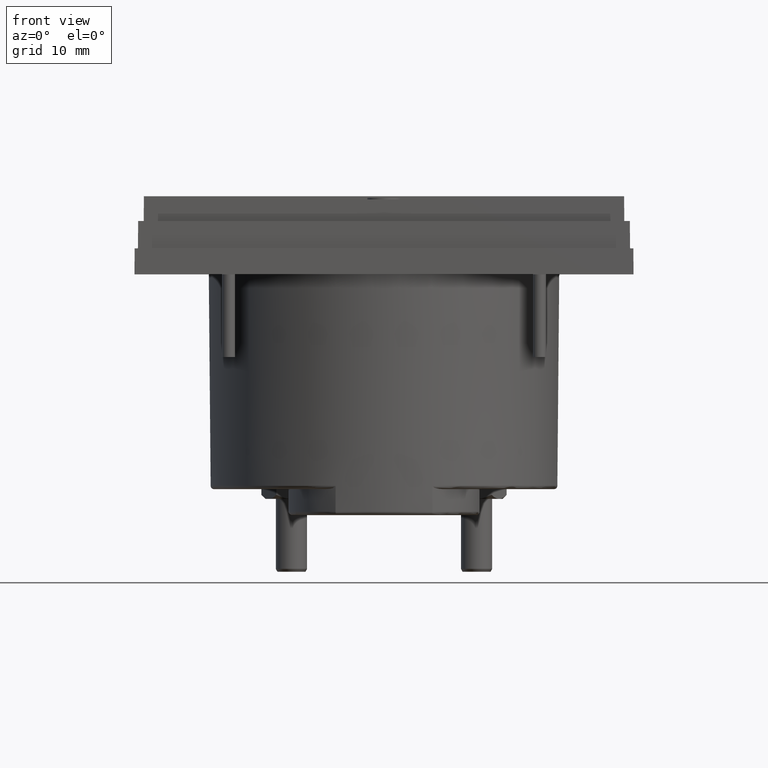
[diagram: clean part render]
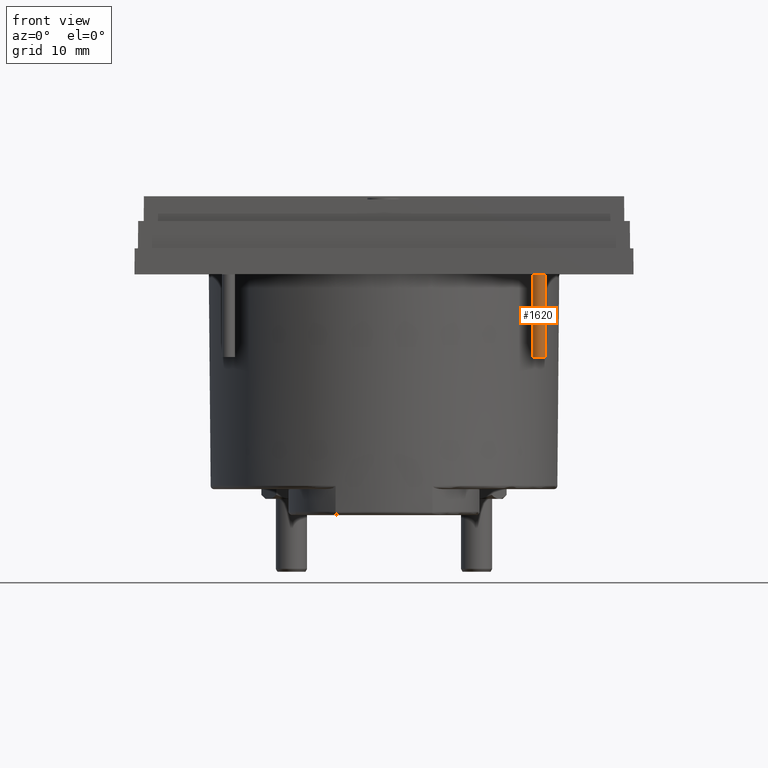
[diagram: same view with one face highlighted and labeled with its STEP entity id]
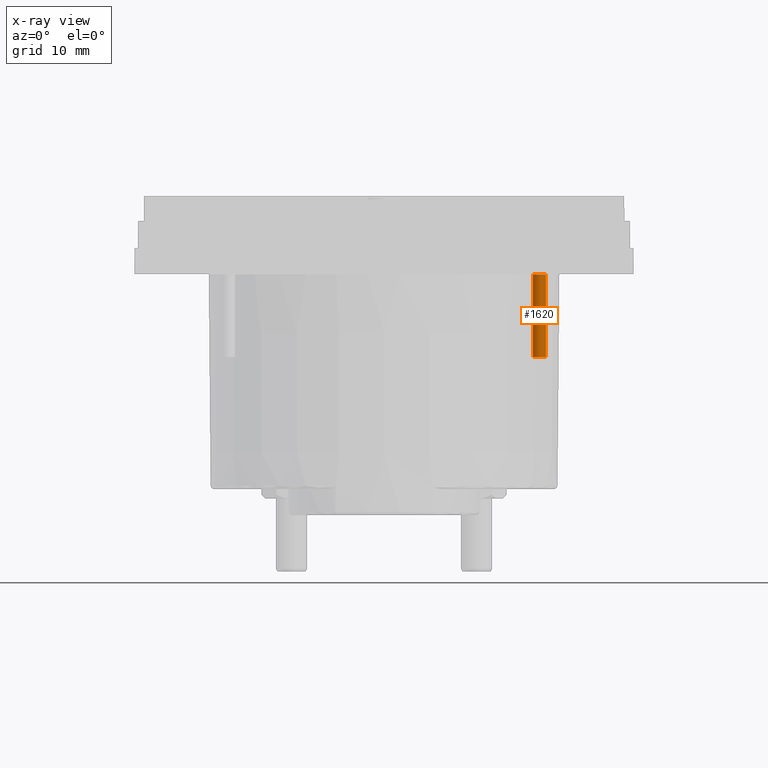
[diagram: x-ray of the same camera — body ghosted, the highlighted face saturated]
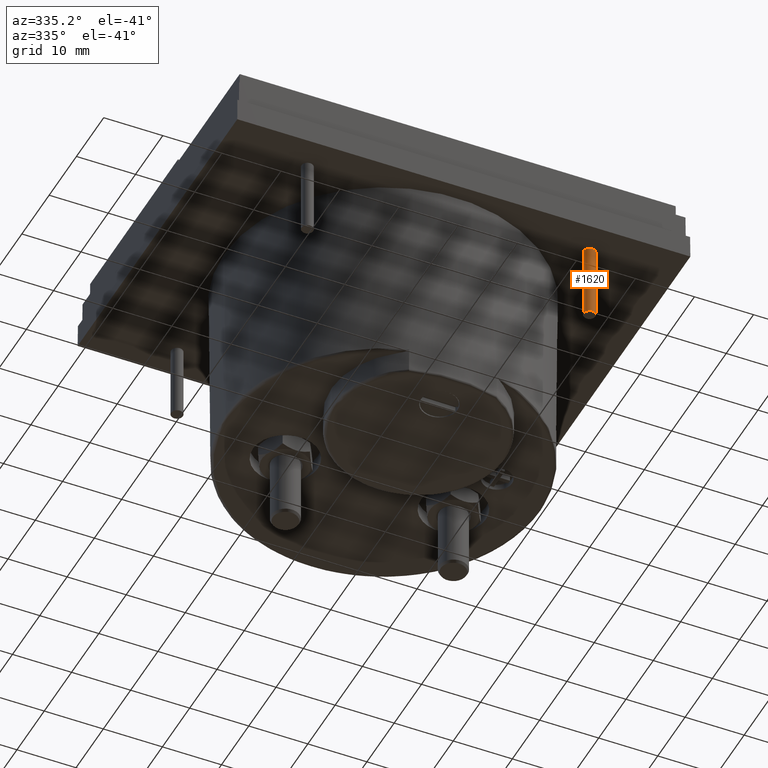
[diagram: same view with one face highlighted and labeled with its STEP entity id]
A machine part, front view. The second image highlights one B-rep face of the part: STEP entity #1620.
The next image is the same camera in x-ray: the body ghosted, the highlighted face saturated — about 0% of this face is hidden behind the body in this view.
A second angle (auxiliary view) of the same face is appended — the face is thin or edge-on in the first view.
In plain terms, the highlighted cylindrical surface (edge-blend (fillet) strip) has radius 1 mm, axis along (0, 0, -1).
Its self-contained STEP definition (entity closure, byte-faithful):
#41 = EDGE_LOOP ( 'NONE', ( #3736, #2776, #388, #5015 ) ) ;
#58 = EDGE_CURVE ( 'NONE', #5956, #4444, #1550, .T. ) ;
#388 = ORIENTED_EDGE ( 'NONE', *, *, #1729, .T. ) ;
#410 = VECTOR ( 'NONE', #1579, 39.37007874015748143 ) ;
#532 = CIRCLE ( 'NONE', #1509, 0.03937007874015751446 ) ;
#673 = CARTESIAN_POINT ( 'NONE',  ( 0.9400000000000000577, -0.1240944881889740337, -0.2732283464566929720 ) ) ;
#1256 = DIRECTION ( 'NONE',  ( 0.000000000000000000, 0.000000000000000000, -1.000000000000000000 ) ) ;
#1509 = AXIS2_PLACEMENT_3D ( 'NONE', #673, #2551, #3877 ) ;
#1540 = CARTESIAN_POINT ( 'NONE',  ( 0.9793700787401575791, -0.1240944881889740337, -0.7732283464566930276 ) ) ;
#1550 = CIRCLE ( 'NONE', #4062, 0.03937007874015751446 ) ;
#1579 = DIRECTION ( 'NONE',  ( 0.000000000000000000, 0.000000000000000000, -1.000000000000000000 ) ) ;
#1620 = ADVANCED_FACE ( 'NONE', ( #2670 ), #5791, .T. ) ;
#1650 = DIRECTION ( 'NONE',  ( -1.000000000000000000, 0.000000000000000000, 0.000000000000000000 ) ) ;
#1729 = EDGE_CURVE ( 'NONE', #4089, #5956, #4729, .T. ) ;
#1794 = DIRECTION ( 'NONE',  ( 0.000000000000000000, 0.000000000000000000, -1.000000000000000000 ) ) ;
#1993 = CARTESIAN_POINT ( 'NONE',  ( 0.9400000000000000577, -0.1240944881889740337, -0.7732283464566930276 ) ) ;
#2239 = CARTESIAN_POINT ( 'NONE',  ( 0.9793700787401575791, -0.1240944881889740337, -0.2732283464566929720 ) ) ;
#2312 = CARTESIAN_POINT ( 'NONE',  ( 0.9793700787401575791, -0.1240944881889740337, -0.2732283464566929720 ) ) ;
#2537 = AXIS2_PLACEMENT_3D ( 'NONE', #4039, #1256, #1650 ) ;
#2551 = DIRECTION ( 'NONE',  ( -0.000000000000000000, -0.000000000000000000, 1.000000000000000000 ) ) ;
#2670 = FACE_OUTER_BOUND ( 'NONE', #41, .T. ) ;
#2694 = LINE ( 'NONE', #2239, #4866 ) ;
#2776 = ORIENTED_EDGE ( 'NONE', *, *, #5353, .F. ) ;
#2862 = DIRECTION ( 'NONE',  ( -0.000000000000000000, -0.000000000000000000, 1.000000000000000000 ) ) ;
#3269 = CARTESIAN_POINT ( 'NONE',  ( 0.9006299212598425363, -0.1240944881889740337, -0.7732283464566930276 ) ) ;
#3386 = CARTESIAN_POINT ( 'NONE',  ( 0.9006299212598425363, -0.1240944881889740337, -0.2732283464566929720 ) ) ;
#3736 = ORIENTED_EDGE ( 'NONE', *, *, #3985, .F. ) ;
#3835 = DIRECTION ( 'NONE',  ( -1.000000000000000000, 0.000000000000000000, 0.000000000000000000 ) ) ;
#3877 = DIRECTION ( 'NONE',  ( -1.000000000000000000, 0.000000000000000000, 0.000000000000000000 ) ) ;
#3985 = EDGE_CURVE ( 'NONE', #4764, #4444, #2694, .T. ) ;
#4039 = CARTESIAN_POINT ( 'NONE',  ( 0.9400000000000000577, -0.1240944881889740337, -0.2732283464566929720 ) ) ;
#4062 = AXIS2_PLACEMENT_3D ( 'NONE', #1993, #2862, #3835 ) ;
#4089 = VERTEX_POINT ( 'NONE', #4697 ) ;
#4444 = VERTEX_POINT ( 'NONE', #1540 ) ;
#4697 = CARTESIAN_POINT ( 'NONE',  ( 0.9006299212598425363, -0.1240944881889740337, -0.2732283464566929720 ) ) ;
#4729 = LINE ( 'NONE', #3386, #410 ) ;
#4764 = VERTEX_POINT ( 'NONE', #2312 ) ;
#4866 = VECTOR ( 'NONE', #1794, 39.37007874015748143 ) ;
#5015 = ORIENTED_EDGE ( 'NONE', *, *, #58, .T. ) ;
#5353 = EDGE_CURVE ( 'NONE', #4089, #4764, #532, .T. ) ;
#5791 = CYLINDRICAL_SURFACE ( 'NONE', #2537, 0.03937007874015751446 ) ;
#5956 = VERTEX_POINT ( 'NONE', #3269 ) ;